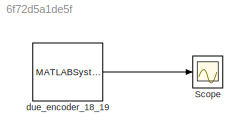
MODEL slx_6f72d5a1de5f
KIND model
CONFIG AbsTol = auto
CONFIG EnableMultiTasking = on
CONFIG FixedStep = 0.025
CONFIG MaxStep = auto
CONFIG MinStep = auto
CONFIG RelTol = 1e-3
CONFIG SampleTimeConstraint = Unconstrained
CONFIG Solver = FixedStepAuto
CONFIG SolverName = FixedStepAuto
CONFIG StartTime = 0.0
CONFIG StopTime = inf
BLOCK [Scope] Scope
  NumInputPorts = 1
  Ports = [1]
  ScopeSpecificationString = Simulink.scopes.TimeScopeBlockCfg('CurrentConfiguration', extmgr.ConfigurationSet(extmgr.Configuration('Core','General UI',true),extmgr.Configuration('Core','Source UI',true),extmgr.Configuration('Sources','WiredSimulink',true),extmgr.Configuration('Visuals','Time Domain',true,'SerializedDisplays',{struct('MinYLimReal','-2.125','MaxYLimReal','-0.875','YLabelReal','','MinYLimMag','0.00000','MaxYLim...<+1380ch>
BLOCK [MATLABSystem] due_encoder_18_19 
  Encoder = 1
  MaskDisplay = disp('soEncoder');\nport_label('output',1,'y');
  MaskType = Encoder_arduino_Due_18_19
  PWMFSelect = 1
  PWMTimer = -1
  PinA = 18
  PinB = 19
  Ports = [0, 1]
  SampleTime = -1
  System = Encoder_arduino_Due_18_19
LINE due_encoder_18_19 :1 -> Scope:1
